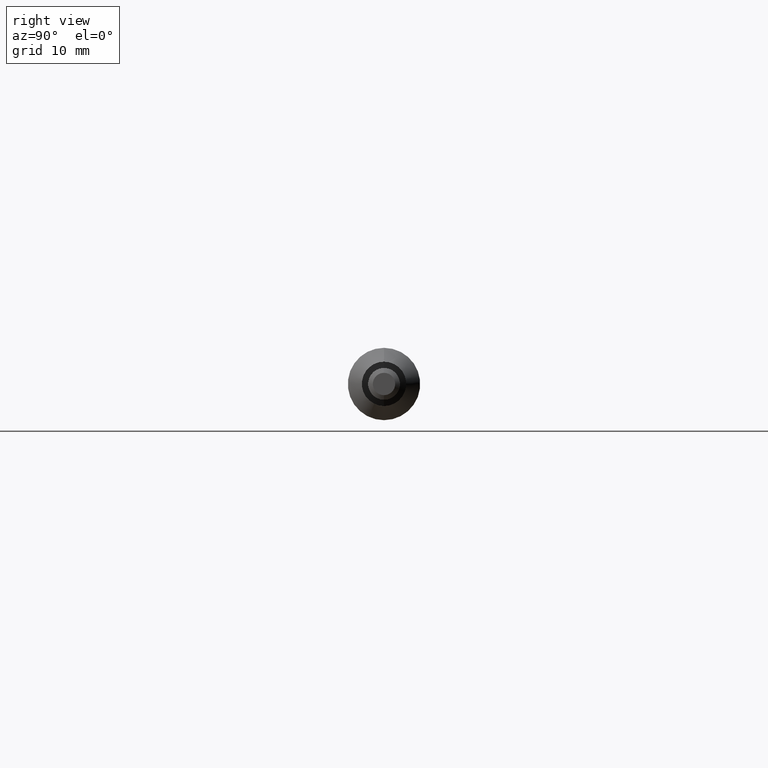
[diagram: clean part render]
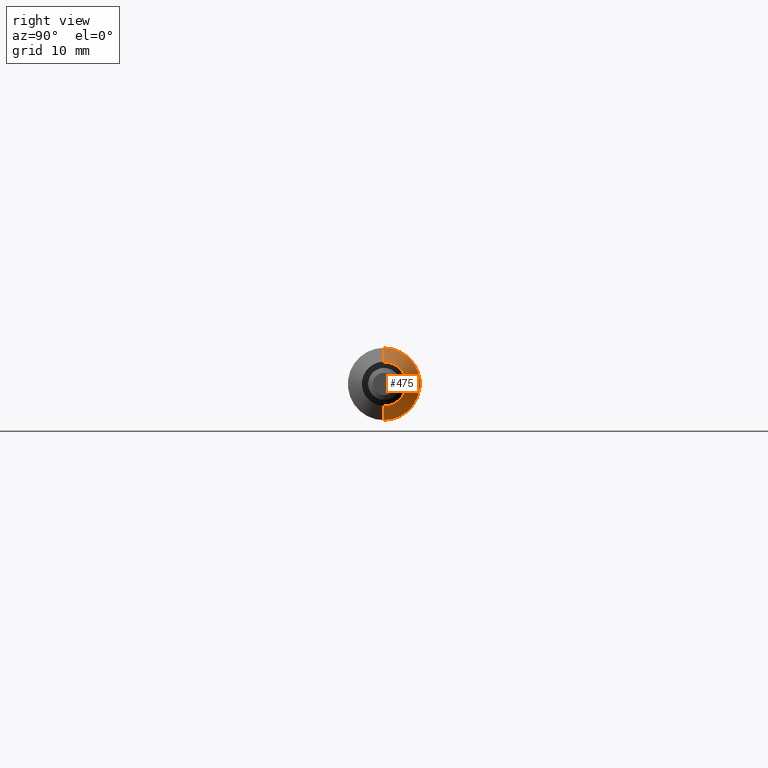
[diagram: same view with one face highlighted and labeled with its STEP entity id]
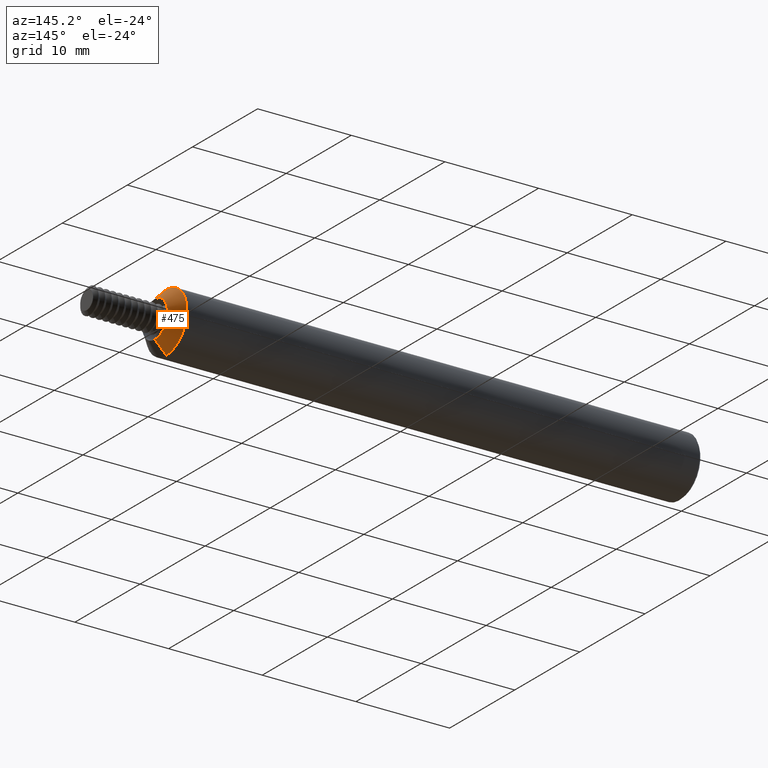
[diagram: same view with one face highlighted and labeled with its STEP entity id]
A machine part, right view. The second image highlights one B-rep face of the part: STEP entity #475.
A second angle (auxiliary view) of the same face is appended — the face is thin or edge-on in the first view.
In plain terms, the highlighted conical surface has half-angle 45 deg.
Its self-contained STEP definition (entity closure, byte-faithful):
#58 = VERTEX_POINT ( 'NONE', #1059 ) ;
#103 = VERTEX_POINT ( 'NONE', #1282 ) ;
#187 = EDGE_CURVE ( 'NONE', #103, #58, #630, .T. ) ;
#233 = ORIENTED_EDGE ( 'NONE', *, *, #2256, .F. ) ;
#271 = VECTOR ( 'NONE', #1512, 39.37007874015748143 ) ;
#328 = CARTESIAN_POINT ( 'NONE',  ( 2.215776406871192705, 0.000000000000000000, 0.07407359312880729130 ) ) ;
#475 = ADVANCED_FACE ( 'NONE', ( #1462 ), #2054, .T. ) ;
#630 = LINE ( 'NONE', #1548, #271 ) ;
#653 = CIRCLE ( 'NONE', #793, 0.1248500000000000026 ) ;
#780 = DIRECTION ( 'NONE',  ( -1.000000000000000000, -0.000000000000000000, -0.000000000000000000 ) ) ;
#793 = AXIS2_PLACEMENT_3D ( 'NONE', #1678, #2737, #2318 ) ;
#995 = ORIENTED_EDGE ( 'NONE', *, *, #187, .T. ) ;
#1040 = DIRECTION ( 'NONE',  ( 0.000000000000000000, 0.000000000000000000, 1.000000000000000000 ) ) ;
#1059 = CARTESIAN_POINT ( 'NONE',  ( 2.165000000000000036, 1.528971528735470422E-17, -0.1248500000000000026 ) ) ;
#1120 = EDGE_LOOP ( 'NONE', ( #1342, #995, #233, #2025 ) ) ;
#1268 = VERTEX_POINT ( 'NONE', #1983 ) ;
#1282 = CARTESIAN_POINT ( 'NONE',  ( 2.213350000000000151, 1.232913165041597546E-17, -0.07649999999999997080 ) ) ;
#1342 = ORIENTED_EDGE ( 'NONE', *, *, #1496, .F. ) ;
#1348 = VECTOR ( 'NONE', #2272, 39.37007874015748143 ) ;
#1462 = FACE_OUTER_BOUND ( 'NONE', #1120, .T. ) ;
#1494 = AXIS2_PLACEMENT_3D ( 'NONE', #2749, #780, #1040 ) ;
#1496 = EDGE_CURVE ( 'NONE', #103, #1268, #1918, .T. ) ;
#1512 = DIRECTION ( 'NONE',  ( -0.7071067811865471286, 8.659560562354937789E-17, -0.7071067811865479058 ) ) ;
#1548 = CARTESIAN_POINT ( 'NONE',  ( 2.215776406871192705, 9.071398872653723231E-18, -0.07407359312880729130 ) ) ;
#1673 = DIRECTION ( 'NONE',  ( 0.000000000000000000, 0.000000000000000000, 1.000000000000000000 ) ) ;
#1678 = CARTESIAN_POINT ( 'NONE',  ( 2.165000000000000036, 0.000000000000000000, 0.000000000000000000 ) ) ;
#1770 = AXIS2_PLACEMENT_3D ( 'NONE', #2547, #2128, #1673 ) ;
#1786 = EDGE_CURVE ( 'NONE', #1268, #2665, #2716, .T. ) ;
#1918 = CIRCLE ( 'NONE', #1770, 0.07649999999999997080 ) ;
#1983 = CARTESIAN_POINT ( 'NONE',  ( 2.213350000000000151, 0.000000000000000000, 0.07649999999999997080 ) ) ;
#2025 = ORIENTED_EDGE ( 'NONE', *, *, #1786, .F. ) ;
#2054 = CONICAL_SURFACE ( 'NONE', #1494, 0.07407359312880729130, 0.7853981633974488341 ) ;
#2128 = DIRECTION ( 'NONE',  ( 1.000000000000000000, 0.000000000000000000, 0.000000000000000000 ) ) ;
#2256 = EDGE_CURVE ( 'NONE', #2665, #58, #653, .T. ) ;
#2272 = DIRECTION ( 'NONE',  ( -0.7071067811865471286, 0.000000000000000000, 0.7071067811865479058 ) ) ;
#2318 = DIRECTION ( 'NONE',  ( 0.000000000000000000, 0.000000000000000000, 1.000000000000000000 ) ) ;
#2330 = CARTESIAN_POINT ( 'NONE',  ( 2.165000000000000036, 0.000000000000000000, 0.1248500000000000026 ) ) ;
#2547 = CARTESIAN_POINT ( 'NONE',  ( 2.213350000000000151, 0.000000000000000000, 0.000000000000000000 ) ) ;
#2665 = VERTEX_POINT ( 'NONE', #2330 ) ;
#2716 = LINE ( 'NONE', #328, #1348 ) ;
#2737 = DIRECTION ( 'NONE',  ( -1.000000000000000000, -0.000000000000000000, -0.000000000000000000 ) ) ;
#2749 = CARTESIAN_POINT ( 'NONE',  ( 2.215776406871192705, 0.000000000000000000, 0.000000000000000000 ) ) ;